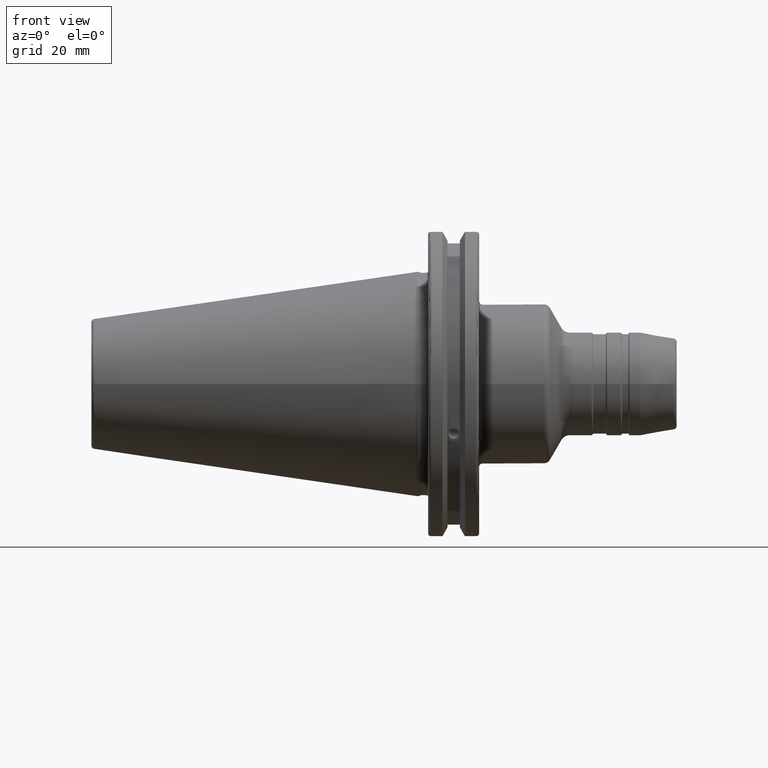
[diagram: clean part render]
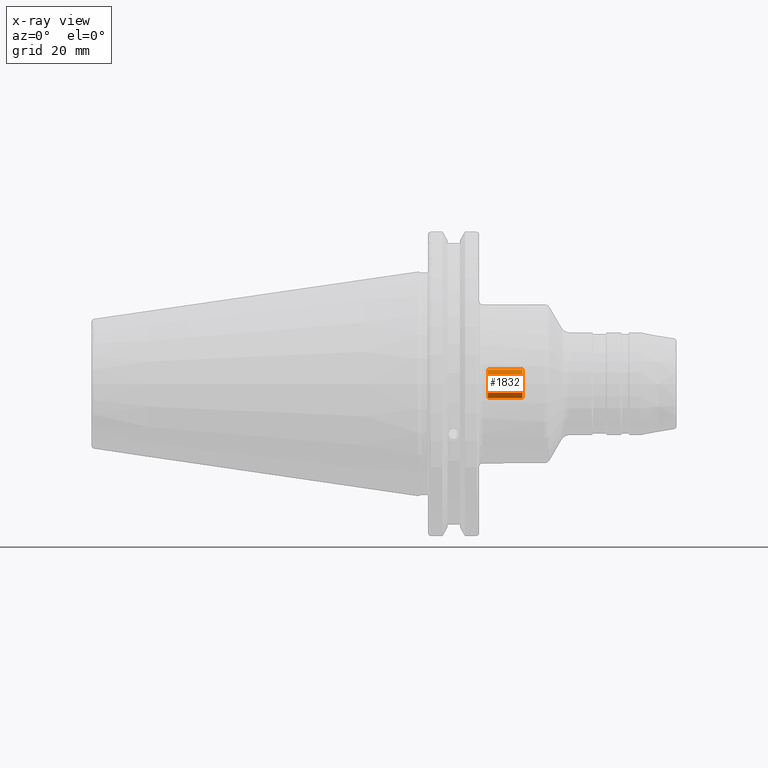
[diagram: x-ray — body ghosted, one internal face saturated and labeled with its STEP entity id]
A machine part, front view, then the same camera in x-ray: the body is ghosted and one INTERNAL B-rep face — a face not visible from any outside direction — is saturated and labeled: STEP entity #1832.
In plain terms, the highlighted cylindrical surface (bore or boss wall) has radius 4.4587 mm, axis along (1, 0, 0).
Its self-contained STEP definition (entity closure, byte-faithful):
#166=FACE_OUTER_BOUND('',#274,.T.);
#274=EDGE_LOOP('',(#1221,#1222,#1223,#1224,#1225));
#402=LINE('',#2791,#506);
#506=VECTOR('',#2208,4.458734);
#610=CIRCLE('',#1964,4.458734);
#611=CIRCLE('',#1965,4.458734);
#612=CIRCLE('',#1966,4.458734);
#739=VERTEX_POINT('',#2788);
#740=VERTEX_POINT('',#2790);
#741=VERTEX_POINT('',#2792);
#932=EDGE_CURVE('',#739,#739,#610,.T.);
#933=EDGE_CURVE('',#739,#740,#402,.T.);
#934=EDGE_CURVE('',#741,#740,#611,.T.);
#935=EDGE_CURVE('',#740,#741,#612,.T.);
#1221=ORIENTED_EDGE('',*,*,#932,.F.);
#1222=ORIENTED_EDGE('',*,*,#933,.T.);
#1223=ORIENTED_EDGE('',*,*,#934,.F.);
#1224=ORIENTED_EDGE('',*,*,#935,.F.);
#1225=ORIENTED_EDGE('',*,*,#933,.F.);
#1799=CYLINDRICAL_SURFACE('',#1963,4.458734);
#1832=ADVANCED_FACE('',(#166),#1799,.F.);
#1963=AXIS2_PLACEMENT_3D('',#2787,#2204,#2205);
#1964=AXIS2_PLACEMENT_3D('',#2789,#2206,#2207);
#1965=AXIS2_PLACEMENT_3D('',#2793,#2209,#2210);
#1966=AXIS2_PLACEMENT_3D('',#2794,#2211,#2212);
#2204=DIRECTION('center_axis',(1.,0.,0.));
#2205=DIRECTION('ref_axis',(0.,0.,-1.));
#2206=DIRECTION('center_axis',(-1.,0.,0.));
#2207=DIRECTION('ref_axis',(0.,0.,-1.));
#2208=DIRECTION('',(-1.,0.,0.));
#2209=DIRECTION('center_axis',(1.,0.,0.));
#2210=DIRECTION('ref_axis',(0.,0.,-1.));
#2211=DIRECTION('center_axis',(1.,0.,0.));
#2212=DIRECTION('ref_axis',(0.,0.,-1.));
#2787=CARTESIAN_POINT('Origin',(-195.128291264114,0.,0.));
#2788=CARTESIAN_POINT('',(32.5,-5.46037432134947E-16,4.458734));
#2789=CARTESIAN_POINT('Origin',(32.5,0.,0.));
#2790=CARTESIAN_POINT('',(21.7767315071168,-5.46037432134947E-16,4.458734));
#2791=CARTESIAN_POINT('',(-195.128291264114,-5.46037432134947E-16,4.458734));
#2792=CARTESIAN_POINT('',(21.7767315071168,-5.46037432134948E-16,-4.45873400000001));
#2793=CARTESIAN_POINT('Origin',(21.7767315071168,0.,0.));
#2794=CARTESIAN_POINT('Origin',(21.7767315071168,0.,0.));